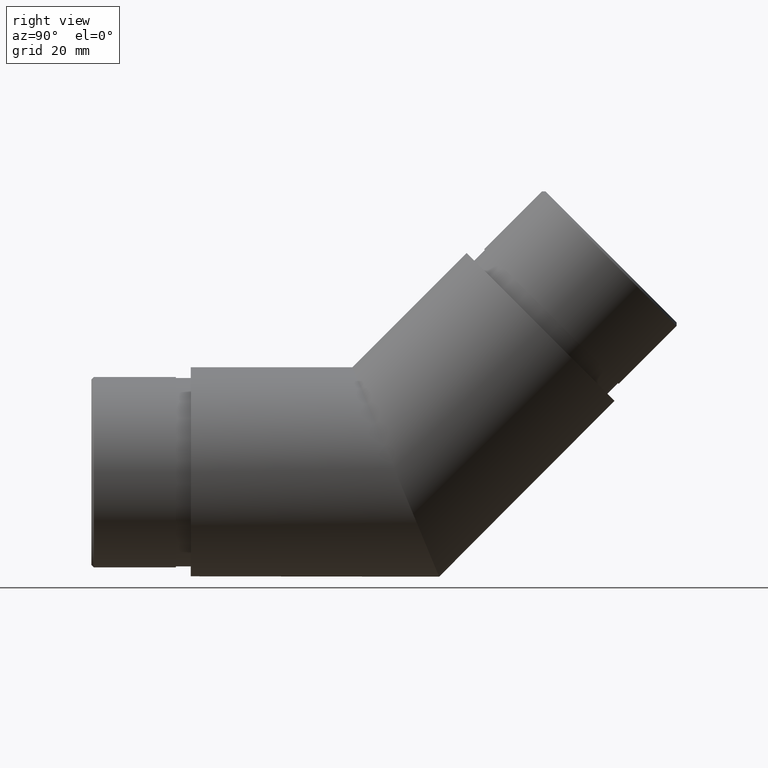
[diagram: clean part render]
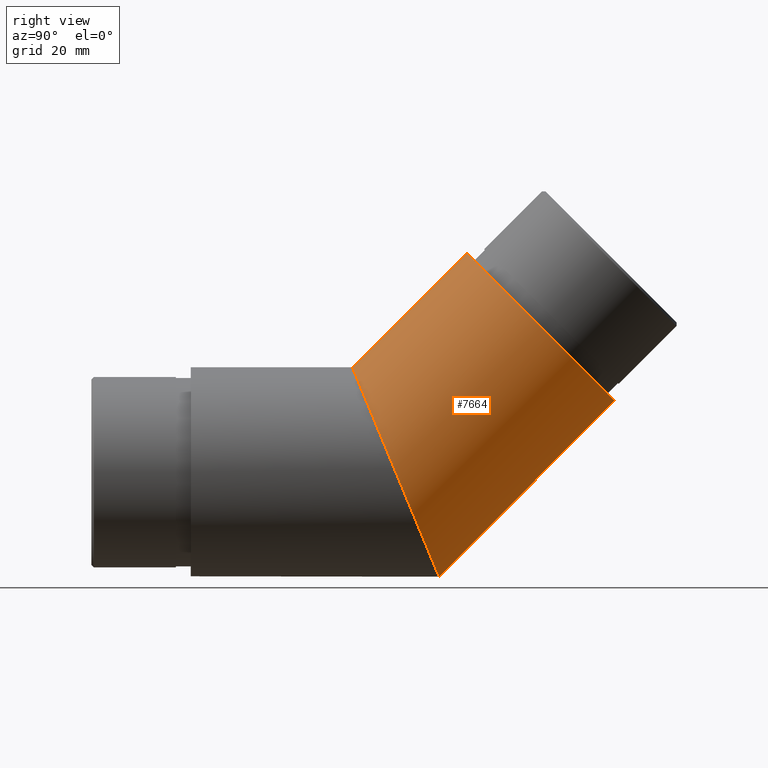
[diagram: same view with one face highlighted and labeled with its STEP entity id]
A machine part, right view. The second image highlights one B-rep face of the part: STEP entity #7664.
In plain terms, the highlighted cylindrical surface (bore or boss wall) has radius 21.1 mm, axis along (0, 0.7071, 0.7071).
Its self-contained STEP definition (entity closure, byte-faithful):
#441 = FACE_OUTER_BOUND ( 'NONE', #3175, .T. ) ;
#512 = DIRECTION ( 'NONE',  ( 0.0000000000000000000, -0.7071067811865487900, 0.7071067811865463500 ) ) ;
#700 = DIRECTION ( 'NONE',  ( 0.0000000000000000000, 0.7071067811865463500, 0.7071067811865487900 ) ) ;
#784 = CYLINDRICAL_SURFACE ( 'NONE', #4932, 21.09999999999999800 ) ;
#793 = CARTESIAN_POINT ( 'NONE',  ( 0.0000000000000000000, 32.52018766785536000, 21.09999999999999800 ) ) ;
#886 = CARTESIAN_POINT ( 'NONE',  ( 0.0000000000000000000, 32.52018766785536000, 21.09999999999999800 ) ) ;
#1123 = FACE_OUTER_BOUND ( 'NONE', #9759, .T. ) ;
#1846 = CARTESIAN_POINT ( 'NONE',  ( 0.0000000000000000000, 32.52018766785536000, 21.09999999999999800 ) ) ;
#3095 = CARTESIAN_POINT ( 'NONE',  ( 0.0000000000000000000, 55.51543289325497500, 44.09524522539968700 ) ) ;
#3175 = EDGE_LOOP ( 'NONE', ( #11454 ) ) ;
#3795 = ORIENTED_EDGE ( 'NONE', *, *, #10326, .T. ) ;
#4189 = AXIS2_PLACEMENT_3D ( 'NONE', #11951, #6757, #6848 ) ;
#4791 = CARTESIAN_POINT ( 'NONE',  ( 42.19999999999999600, 50.00000000000002100, -21.09999999999999400 ) ) ;
#4932 = AXIS2_PLACEMENT_3D ( 'NONE', #12994, #700, #512 ) ;
#5828 = CARTESIAN_POINT ( 'NONE',  ( -42.19999999999999600, 32.52018766785536000, 21.09999999999999800 ) ) ;
#6757 = DIRECTION ( 'NONE',  ( -0.0000000000000000000, -0.7071067811865463500, -0.7071067811865487900 ) ) ;
#6848 = DIRECTION ( 'NONE',  ( 0.0000000000000000000, -0.7071067811865487900, 0.7071067811865463500 ) ) ;
#7664 = ADVANCED_FACE ( 'NONE', ( #441, #1123 ), #784, .T. ) ;
#8570 = CIRCLE ( 'NONE', #4189, 21.09999999999999400 ) ;
#8983 = CARTESIAN_POINT ( 'NONE',  ( 42.19999999999999600, 32.52018766785536000, 21.09999999999999800 ) ) ;
#9027 = VERTEX_POINT ( 'NONE', #886 ) ;
#9562 = EDGE_CURVE ( 'NONE', #9027, #9027, #13236, .T. ) ;
#9759 = EDGE_LOOP ( 'NONE', ( #3795 ) ) ;
#9924 = CARTESIAN_POINT ( 'NONE',  ( 2.584004746200915400E-015, 50.00000000000001400, -21.09999999999999800 ) ) ;
#10326 = EDGE_CURVE ( 'NONE', #12073, #12073, #8570, .T. ) ;
#11454 = ORIENTED_EDGE ( 'NONE', *, *, #9562, .T. ) ;
#11937 = CARTESIAN_POINT ( 'NONE',  ( -42.19999999999999600, 50.00000000000002100, -21.10000000000000100 ) ) ;
#11951 = CARTESIAN_POINT ( 'NONE',  ( 0.0000000000000000000, 70.43538597629114400, 29.17529214236356700 ) ) ;
#12073 = VERTEX_POINT ( 'NONE', #3095 ) ;
#12994 = CARTESIAN_POINT ( 'NONE',  ( 0.0000000000000000000, 41.26009383392769100, 0.0000000000000000000 ) ) ;
#13236 =( BOUNDED_CURVE ( )  B_SPLINE_CURVE ( 3, ( #1846, #8983, #4791, #9924, #11937, #5828, #793 ),
 .UNSPECIFIED., .T., .T. ) 
 B_SPLINE_CURVE_WITH_KNOTS ( ( 4, 3, 4 ),
 ( 0.0000000000000000000, 3.141592653589793100, 6.283185307179586200 ),
 .UNSPECIFIED. ) 
 CURVE ( )  GEOMETRIC_REPRESENTATION_ITEM ( )  RATIONAL_B_SPLINE_CURVE ( ( 1.000000000000000000, 0.3333333333333333700, 0.3333333333333333700, 1.000000000000000000, 0.3333333333333333700, 0.3333333333333333700, 1.000000000000000000 ) ) 
 REPRESENTATION_ITEM ( '' )  );